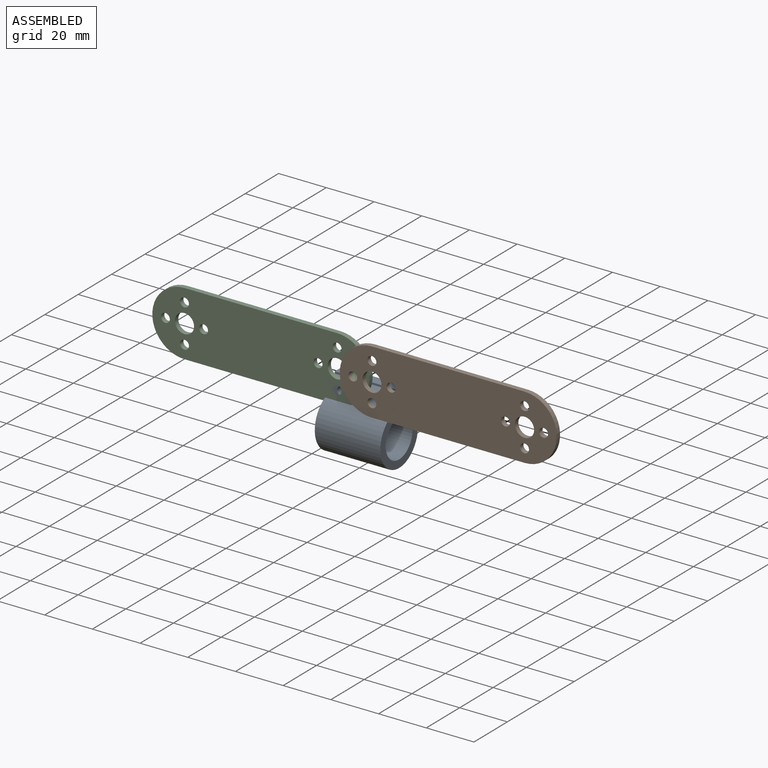
[diagram: assembled view]
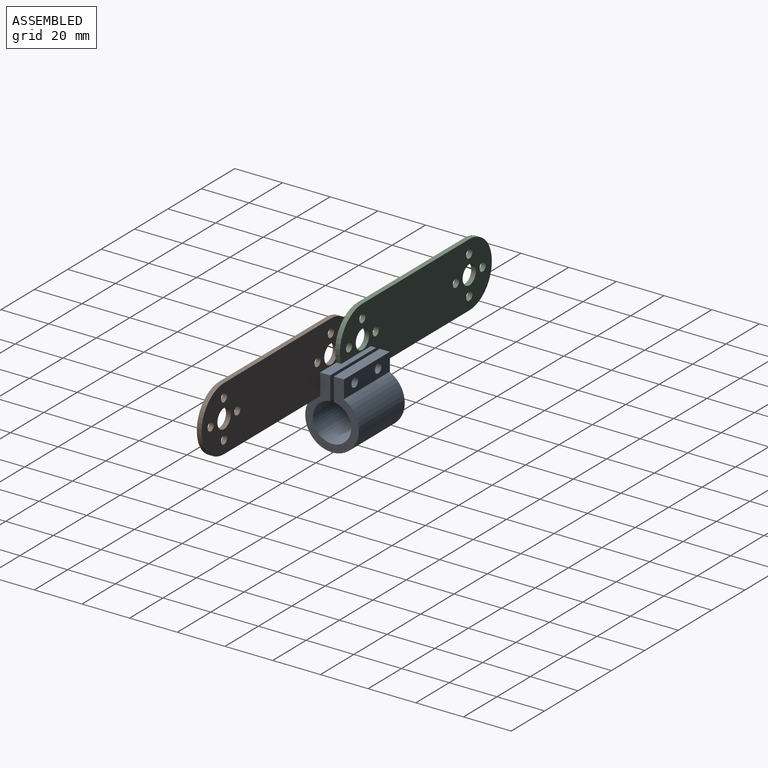
[diagram: assembled view, second angle]
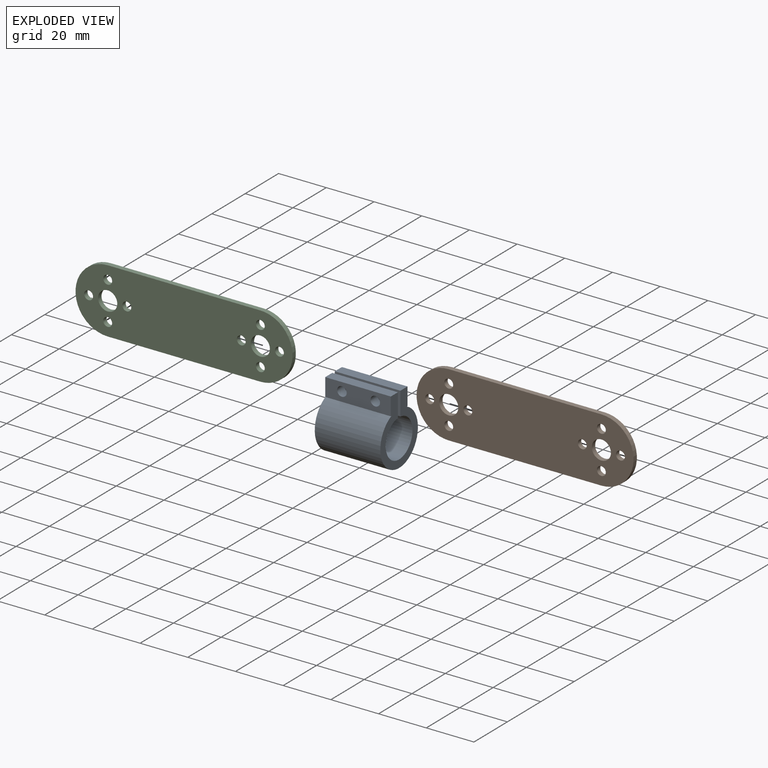
[diagram: exploded view]
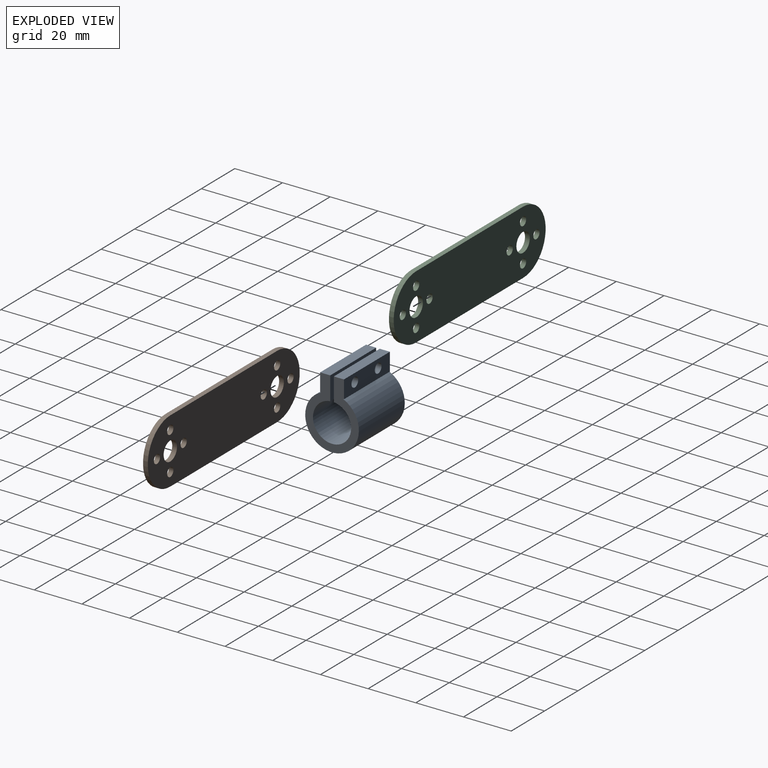
[diagram: exploded view, second angle]
ASSEMBLY  parts=3 mates=2
PART A: 16 faces, bbox 22.5x29x27.5 mm
  f0: plane 27.5x4.25mm, normal (0,-1,0), area 116.9mm2, adj f2,f3,f9,f11
  f1: cylinder r=8mm len=27.5mm, axis (0,0,-1), area 1341mm2, adj f2,f3,f10,f11
  f2: plane 29x22.5mm, normal (0,0,1), area 250.7mm2, adj f0,f1,f4,f5,f6,f7,f8,f9
  f3: plane 29x22.5mm, normal (0,0,-1), area 250.7mm2, adj f0,f1,f4,f5,f6,f7,f8,f9
  f4: plane 27.5x0.36mm, normal (0,1,0), area 10mm2, adj f2,f3,f5,f9
  f5: cylinder r=11.25mm len=27.5mm, axis (0,0,-1), area 1681mm2, adj f2,f3,f4,f6
  f6: plane 27.5x0.36mm, normal (0,1,0), area 10mm2, adj f2,f3,f5,f7
  f7: plane 27.5x7.5mm, normal (-1,0,0), area 181.1mm2, adj f2,f3,f6,f8,f14,f15
  f8: plane 27.5x4.25mm, normal (0,-1,0), area 116.9mm2, adj f2,f3,f7,f10
  f9: plane 27.5x7.5mm, normal (1,0,0), area 181.1mm2, adj f0,f2,f3,f4,f12,f13
  f10: plane 27.5x9.79mm, normal (1,0,0), area 244mm2, adj f1,f2,f3,f8,f14,f15
  f11: plane 27.5x9.79mm, normal (-1,0,0), area 244mm2, adj f0,f1,f2,f3,f12,f13
  f12: cylinder r=2mm len=4.25mm, axis (1,0,0), area 53.4mm2, adj f9,f11
  f13: cylinder r=2mm len=4.25mm, axis (1,0,0), area 53.4mm2, adj f9,f11
  f14: cylinder r=2mm len=4.25mm, axis (1,0,0), area 53.4mm2, adj f7,f10
  f15: cylinder r=2mm len=4.25mm, axis (1,0,0), area 53.4mm2, adj f7,f10
PART B: 16 faces, bbox 91x27x2 mm
  f0: cylinder r=1.85mm len=3.7mm, axis (0,0,1), area 23.2mm2, adj f12,f13
  f1: cylinder r=1.85mm len=3.7mm, axis (0,0,1), area 23.2mm2, adj f12,f13
  f2: cylinder r=1.85mm len=3.7mm, axis (0,0,1), area 23.2mm2, adj f12,f13
  f3: cylinder r=1.85mm len=3.7mm, axis (0,0,1), area 23.2mm2, adj f12,f13
  f4: cylinder r=4mm len=8mm, axis (0,0,1), area 50.3mm2, adj f12,f13
  f5: cylinder r=1.85mm len=3.7mm, axis (0,0,1), area 23.2mm2, adj f12,f13
  f6: cylinder r=1.85mm len=3.7mm, axis (0,0,1), area 23.2mm2, adj f12,f13
  f7: cylinder r=1.85mm len=3.7mm, axis (0,0,1), area 23.2mm2, adj f12,f13
  f8: cylinder r=1.85mm len=3.7mm, axis (0,0,1), area 23.2mm2, adj f12,f13
  f9: cylinder r=4mm len=8mm, axis (0,0,1), area 50.3mm2, adj f12,f13
  f10: plane 64x2mm, normal (0,1,0), area 128mm2, adj f12,f13,f14,f15
  f11: plane 64x2mm, normal (0,-1,0), area 128mm2, adj f12,f13,f14,f15
  f12: plane 91x27mm, normal (0,0,1), area 2114mm2, adj f0,f1,f2,f3,f4,f5,f6,f7
  f13: plane 91x27mm, normal (0,0,-1), area 2114mm2, adj f0,f1,f2,f3,f4,f5,f6,f7
  f14: cylinder r=13.5mm len=27mm, axis (0,0,-1), area 84.8mm2, adj f10,f11,f12,f13
  f15: cylinder r=13.5mm len=27mm, axis (0,0,-1), area 84.8mm2, adj f10,f11,f12,f13
PART C: same geometry as B
PLACE A rot(axis=(-0.58,0.58,-0.58),120deg) t=(-13,3,-22.25)mm
PLACE B rot(axis=(0,-0.71,-0.71),180deg) t=(40,-4,0)mm
PLACE C rot(axis=(0,0.71,0.71),180deg) t=(-40,-2,0)mm
MATE fastened A.f13 <-> B.f1  axis (0,-1,0) through (8,-2,-8)mm
MATE revolute C.f7 <-> B.f3  axis (0,-1,0) through (0,-2,0)mm
